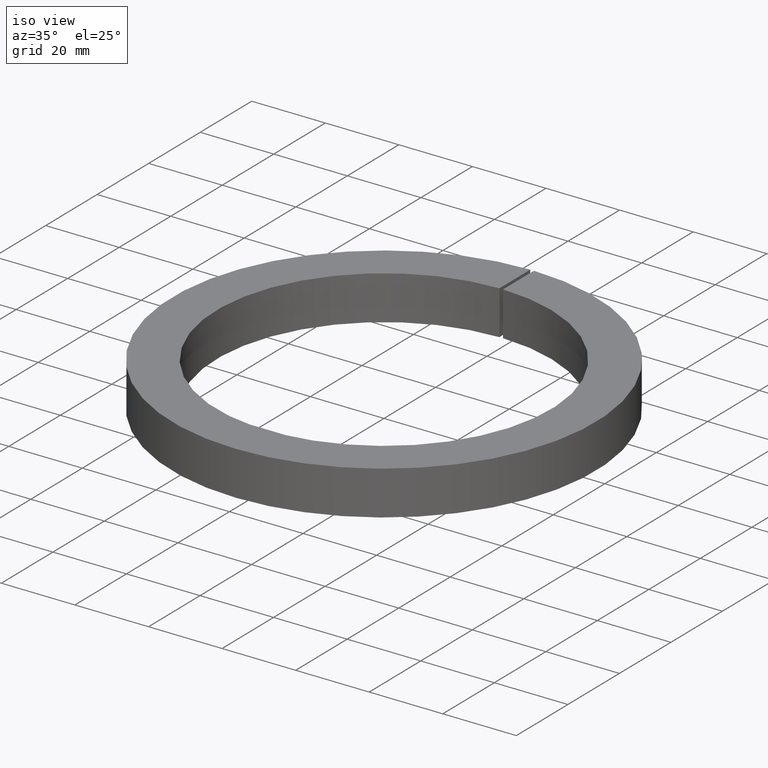
[diagram: clean part render]
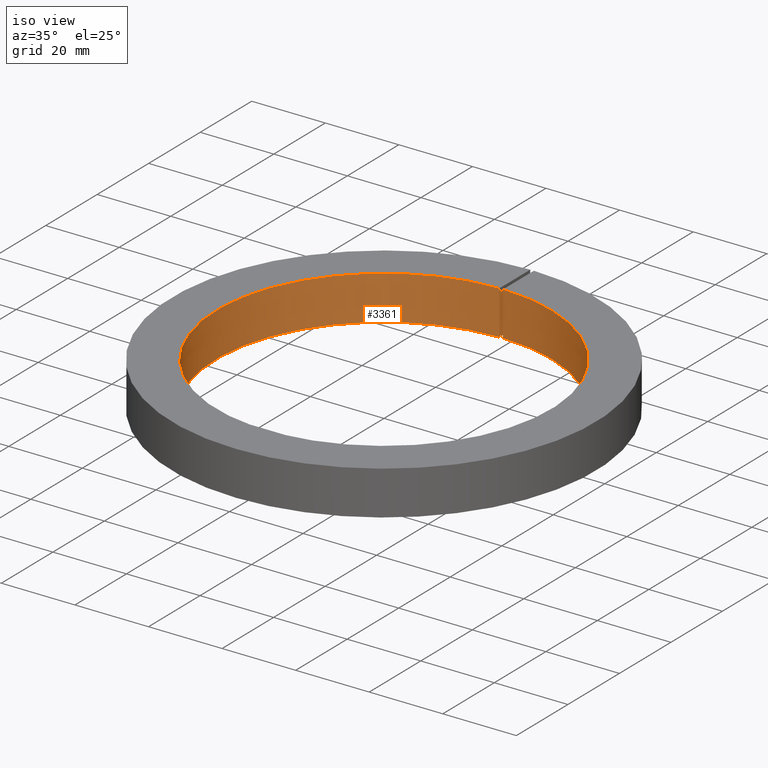
[diagram: same view with one face highlighted and labeled with its STEP entity id]
A machine part, iso view. The second image highlights one B-rep face of the part: STEP entity #3361.
In plain terms, the highlighted cylindrical surface (partial cylindrical patch) has radius 45.5 mm, axis along (-0, -0, -1).
Its self-contained STEP definition (entity closure, byte-faithful):
#228 = CARTESIAN_POINT ( 'NONE',  ( -0.5000000000000000000, 45.49725266430930000, -6.000000000000001800 ) ) ;
#237 = DIRECTION ( 'NONE',  ( -1.000000000000000000, 0.0000000000000000000, 0.0000000000000000000 ) ) ;
#505 = DIRECTION ( 'NONE',  ( -0.0000000000000000000, -0.0000000000000000000, 1.000000000000000000 ) ) ;
#1371 = EDGE_CURVE ( 'NONE', #7420, #8618, #8858, .T. ) ;
#1492 = EDGE_CURVE ( 'NONE', #9613, #6562, #5242, .T. ) ;
#1522 = ORIENTED_EDGE ( 'NONE', *, *, #9829, .T. ) ;
#2183 = DIRECTION ( 'NONE',  ( -1.000000000000000000, 0.0000000000000000000, 0.0000000000000000000 ) ) ;
#2213 = DIRECTION ( 'NONE',  ( -0.0000000000000000000, -0.0000000000000000000, 1.000000000000000000 ) ) ;
#2263 = LINE ( 'NONE', #10166, #2961 ) ;
#2641 = CARTESIAN_POINT ( 'NONE',  ( 0.5000000000000000000, 45.49725266430930000, -6.000000000000001800 ) ) ;
#2826 = AXIS2_PLACEMENT_3D ( 'NONE', #3871, #7346, #237 ) ;
#2961 = VECTOR ( 'NONE', #505, 1000.000000000000000 ) ;
#3215 = CARTESIAN_POINT ( 'NONE',  ( 0.5000000000000000000, 45.49725266430930000, 6.000000000000000900 ) ) ;
#3233 = EDGE_CURVE ( 'NONE', #7420, #9613, #7744, .T. ) ;
#3361 = ADVANCED_FACE ( 'NONE', ( #4663 ), #11216, .F. ) ;
#3871 = CARTESIAN_POINT ( 'NONE',  ( 0.0000000000000000000, 0.0000000000000000000, -6.000000000000001800 ) ) ;
#4031 = DIRECTION ( 'NONE',  ( -0.0000000000000000000, -0.0000000000000000000, -1.000000000000000000 ) ) ;
#4388 = VECTOR ( 'NONE', #2213, 1000.000000000000000 ) ;
#4397 = DIRECTION ( 'NONE',  ( -0.0000000000000000000, -0.0000000000000000000, -1.000000000000000000 ) ) ;
#4663 = FACE_OUTER_BOUND ( 'NONE', #7424, .T. ) ;
#5033 = AXIS2_PLACEMENT_3D ( 'NONE', #9579, #4397, #8653 ) ;
#5242 = CIRCLE ( 'NONE', #7840, 45.50000000000000000 ) ;
#5345 = ORIENTED_EDGE ( 'NONE', *, *, #1492, .F. ) ;
#5846 = CARTESIAN_POINT ( 'NONE',  ( 0.5000000000000000000, 45.49725266430930000, -6.000000000000001800 ) ) ;
#6562 = VERTEX_POINT ( 'NONE', #9795 ) ;
#6593 = ORIENTED_EDGE ( 'NONE', *, *, #3233, .F. ) ;
#7346 = DIRECTION ( 'NONE',  ( -0.0000000000000000000, -0.0000000000000000000, -1.000000000000000000 ) ) ;
#7420 = VERTEX_POINT ( 'NONE', #2641 ) ;
#7424 = EDGE_LOOP ( 'NONE', ( #5345, #6593, #8453, #1522 ) ) ;
#7744 = LINE ( 'NONE', #5846, #4388 ) ;
#7840 = AXIS2_PLACEMENT_3D ( 'NONE', #9385, #4031, #2183 ) ;
#8453 = ORIENTED_EDGE ( 'NONE', *, *, #1371, .T. ) ;
#8618 = VERTEX_POINT ( 'NONE', #228 ) ;
#8653 = DIRECTION ( 'NONE',  ( -1.000000000000000000, 0.0000000000000000000, 0.0000000000000000000 ) ) ;
#8858 = CIRCLE ( 'NONE', #2826, 45.50000000000000000 ) ;
#9385 = CARTESIAN_POINT ( 'NONE',  ( 0.0000000000000000000, 0.0000000000000000000, 6.000000000000000900 ) ) ;
#9579 = CARTESIAN_POINT ( 'NONE',  ( 0.0000000000000000000, 0.0000000000000000000, 0.0000000000000000000 ) ) ;
#9613 = VERTEX_POINT ( 'NONE', #3215 ) ;
#9795 = CARTESIAN_POINT ( 'NONE',  ( -0.5000000000000000000, 45.49725266430930000, 6.000000000000000900 ) ) ;
#9829 = EDGE_CURVE ( 'NONE', #8618, #6562, #2263, .T. ) ;
#10166 = CARTESIAN_POINT ( 'NONE',  ( -0.5000000000000000000, 45.49725266430930000, -6.000000000000001800 ) ) ;
#11216 = CYLINDRICAL_SURFACE ( 'NONE', #5033, 45.50000000000000000 ) ;